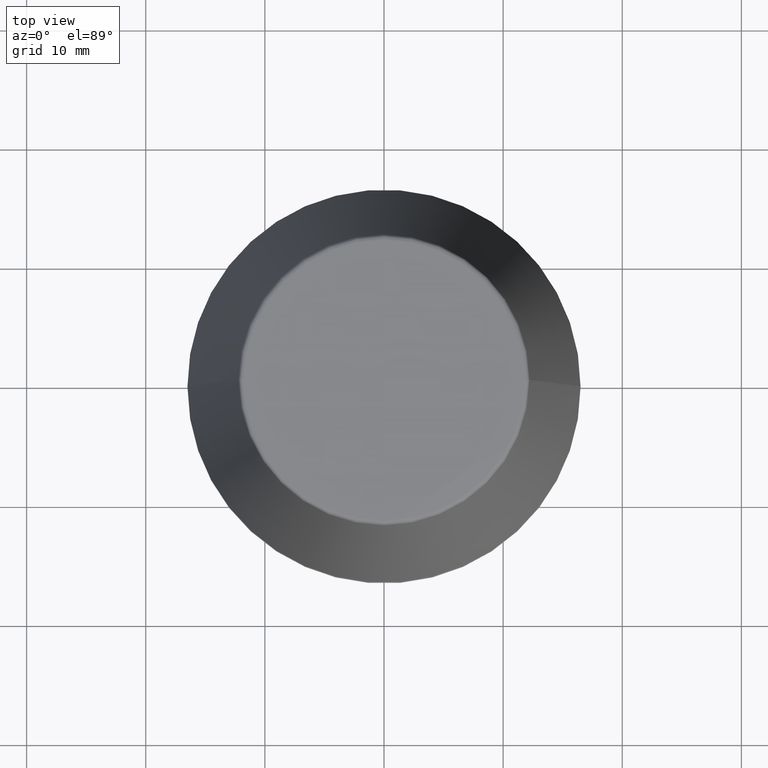
[diagram: clean part render]
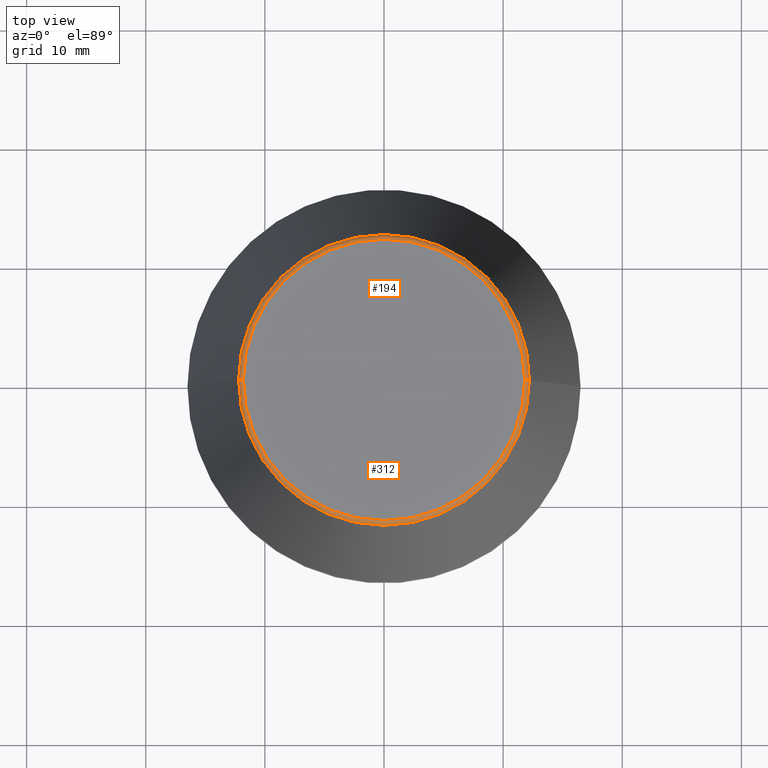
[diagram: same view with one multi-face feature highlighted, each face labeled with its STEP entity id]
A machine part, top view. The highlighted faces form ONE feature: a constant-radius fillet chain: 2 tangent blend faces with common blend radius 0.4 mm. The faces share edges in the B-rep.
Their STEP definitions:
[1] entity #194 (Torus):
#16 = DIRECTION ( 'NONE',  ( 1.000000000000000000, 0.0000000000000000000, 0.0000000000000000000 ) ) ;
#17 = AXIS2_PLACEMENT_3D ( 'NONE', #177, #317, #238 ) ;
#33 = DIRECTION ( 'NONE',  ( 1.000000000000000000, 0.0000000000000000000, 0.0000000000000000000 ) ) ;
#42 = DIRECTION ( 'NONE',  ( 1.000000000000000000, 0.0000000000000000000, 0.0000000000000000000 ) ) ;
#43 = TOROIDAL_SURFACE ( 'NONE', #382, 11.80989888411031400, 0.4000000000000026900 ) ;
#49 = AXIS2_PLACEMENT_3D ( 'NONE', #287, #141, #16 ) ;
#66 = CARTESIAN_POINT ( 'NONE',  ( -11.80989888411031400, 1.446295486667959300E-015, 39.60000000000000100 ) ) ;
#71 = CARTESIAN_POINT ( 'NONE',  ( 0.0000000000000000000, 0.0000000000000000000, 40.00000000000000700 ) ) ;
#79 = CIRCLE ( 'NONE', #17, 0.4000000000000045200 ) ;
#85 = DIRECTION ( 'NONE',  ( -0.0000000000000000000, -0.0000000000000000000, 1.000000000000000000 ) ) ;
#86 = VERTEX_POINT ( 'NONE', #89 ) ;
#89 = CARTESIAN_POINT ( 'NONE',  ( 11.80989888411031400, 0.0000000000000000000, 40.00000000000000700 ) ) ;
#120 = AXIS2_PLACEMENT_3D ( 'NONE', #71, #299, #42 ) ;
#135 = ORIENTED_EDGE ( 'NONE', *, *, #313, .F. ) ;
#141 = DIRECTION ( 'NONE',  ( -0.0000000000000000000, -0.0000000000000000000, 1.000000000000000000 ) ) ;
#145 = AXIS2_PLACEMENT_3D ( 'NONE', #66, #216, #248 ) ;
#153 = EDGE_LOOP ( 'NONE', ( #171, #199, #173, #135 ) ) ;
#160 = CARTESIAN_POINT ( 'NONE',  ( 0.0000000000000000000, 0.0000000000000000000, 39.60000000000000100 ) ) ;
#163 = CIRCLE ( 'NONE', #145, 0.4000000000000028000 ) ;
#171 = ORIENTED_EDGE ( 'NONE', *, *, #341, .T. ) ;
#173 = ORIENTED_EDGE ( 'NONE', *, *, #363, .F. ) ;
#177 = CARTESIAN_POINT ( 'NONE',  ( 11.80989888411031400, 0.0000000000000000000, 39.60000000000000100 ) ) ;
#194 = ADVANCED_FACE ( 'NONE', ( #205 ), #43, .T. ) ;
#199 = ORIENTED_EDGE ( 'NONE', *, *, #375, .T. ) ;
#205 = FACE_OUTER_BOUND ( 'NONE', #153, .T. ) ;
#208 = CARTESIAN_POINT ( 'NONE',  ( -11.80989888411031400, 1.470550059081603400E-015, 40.00000000000000700 ) ) ;
#216 = DIRECTION ( 'NONE',  ( 1.224646799147353200E-016, 1.000000000000000000, 0.0000000000000000000 ) ) ;
#238 = DIRECTION ( 'NONE',  ( 0.0000000000000000000, 0.0000000000000000000, -1.000000000000000000 ) ) ;
#248 = DIRECTION ( 'NONE',  ( -1.000000000000000000, 1.224646799147352500E-016, 0.0000000000000000000 ) ) ;
#254 = CARTESIAN_POINT ( 'NONE',  ( -12.20600611160694300, 0.0000000000000000000, 39.65566924038402900 ) ) ;
#264 = CIRCLE ( 'NONE', #49, 12.20600611160694300 ) ;
#287 = CARTESIAN_POINT ( 'NONE',  ( 0.0000000000000000000, 0.0000000000000000000, 39.65566924038402900 ) ) ;
#289 = VERTEX_POINT ( 'NONE', #315 ) ;
#299 = DIRECTION ( 'NONE',  ( -0.0000000000000000000, -0.0000000000000000000, 1.000000000000000000 ) ) ;
#310 = CIRCLE ( 'NONE', #120, 11.80989888411031400 ) ;
#313 = EDGE_CURVE ( 'NONE', #289, #86, #79, .T. ) ;
#315 = CARTESIAN_POINT ( 'NONE',  ( 12.20600611160694300, 1.757755848304969800E-015, 39.65566924038402900 ) ) ;
#317 = DIRECTION ( 'NONE',  ( 0.0000000000000000000, -1.000000000000000000, 0.0000000000000000000 ) ) ;
#327 = VERTEX_POINT ( 'NONE', #208 ) ;
#341 = EDGE_CURVE ( 'NONE', #289, #373, #264, .T. ) ;
#363 = EDGE_CURVE ( 'NONE', #86, #327, #310, .T. ) ;
#373 = VERTEX_POINT ( 'NONE', #254 ) ;
#375 = EDGE_CURVE ( 'NONE', #373, #327, #163, .T. ) ;
#382 = AXIS2_PLACEMENT_3D ( 'NONE', #160, #85, #33 ) ;
[2] entity #312 (Torus):
#17 = AXIS2_PLACEMENT_3D ( 'NONE', #177, #317, #238 ) ;
#32 = AXIS2_PLACEMENT_3D ( 'NONE', #152, #172, #191 ) ;
#45 = EDGE_CURVE ( 'NONE', #327, #86, #81, .T. ) ;
#59 = AXIS2_PLACEMENT_3D ( 'NONE', #237, #222, #297 ) ;
#66 = CARTESIAN_POINT ( 'NONE',  ( -11.80989888411031400, 1.446295486667959300E-015, 39.60000000000000100 ) ) ;
#79 = CIRCLE ( 'NONE', #17, 0.4000000000000045200 ) ;
#81 = CIRCLE ( 'NONE', #32, 11.80989888411031400 ) ;
#86 = VERTEX_POINT ( 'NONE', #89 ) ;
#89 = CARTESIAN_POINT ( 'NONE',  ( 11.80989888411031400, 0.0000000000000000000, 40.00000000000000700 ) ) ;
#122 = ORIENTED_EDGE ( 'NONE', *, *, #45, .F. ) ;
#140 = CARTESIAN_POINT ( 'NONE',  ( 0.0000000000000000000, 0.0000000000000000000, 39.65566924038402900 ) ) ;
#142 = ORIENTED_EDGE ( 'NONE', *, *, #155, .T. ) ;
#143 = ORIENTED_EDGE ( 'NONE', *, *, #375, .F. ) ;
#145 = AXIS2_PLACEMENT_3D ( 'NONE', #66, #216, #248 ) ;
#152 = CARTESIAN_POINT ( 'NONE',  ( 0.0000000000000000000, 0.0000000000000000000, 40.00000000000000700 ) ) ;
#155 = EDGE_CURVE ( 'NONE', #373, #289, #266, .T. ) ;
#163 = CIRCLE ( 'NONE', #145, 0.4000000000000028000 ) ;
#169 = AXIS2_PLACEMENT_3D ( 'NONE', #140, #348, #335 ) ;
#172 = DIRECTION ( 'NONE',  ( -0.0000000000000000000, -0.0000000000000000000, 1.000000000000000000 ) ) ;
#177 = CARTESIAN_POINT ( 'NONE',  ( 11.80989888411031400, 0.0000000000000000000, 39.60000000000000100 ) ) ;
#191 = DIRECTION ( 'NONE',  ( 1.000000000000000000, 0.0000000000000000000, 0.0000000000000000000 ) ) ;
#208 = CARTESIAN_POINT ( 'NONE',  ( -11.80989888411031400, 1.470550059081603400E-015, 40.00000000000000700 ) ) ;
#216 = DIRECTION ( 'NONE',  ( 1.224646799147353200E-016, 1.000000000000000000, 0.0000000000000000000 ) ) ;
#222 = DIRECTION ( 'NONE',  ( -0.0000000000000000000, -0.0000000000000000000, 1.000000000000000000 ) ) ;
#237 = CARTESIAN_POINT ( 'NONE',  ( 0.0000000000000000000, 0.0000000000000000000, 39.60000000000000100 ) ) ;
#238 = DIRECTION ( 'NONE',  ( 0.0000000000000000000, 0.0000000000000000000, -1.000000000000000000 ) ) ;
#248 = DIRECTION ( 'NONE',  ( -1.000000000000000000, 1.224646799147352500E-016, 0.0000000000000000000 ) ) ;
#254 = CARTESIAN_POINT ( 'NONE',  ( -12.20600611160694300, 0.0000000000000000000, 39.65566924038402900 ) ) ;
#266 = CIRCLE ( 'NONE', #169, 12.20600611160694300 ) ;
#283 = FACE_OUTER_BOUND ( 'NONE', #362, .T. ) ;
#289 = VERTEX_POINT ( 'NONE', #315 ) ;
#297 = DIRECTION ( 'NONE',  ( 1.000000000000000000, 0.0000000000000000000, 0.0000000000000000000 ) ) ;
#301 = ORIENTED_EDGE ( 'NONE', *, *, #313, .T. ) ;
#312 = ADVANCED_FACE ( 'NONE', ( #283 ), #357, .T. ) ;
#313 = EDGE_CURVE ( 'NONE', #289, #86, #79, .T. ) ;
#315 = CARTESIAN_POINT ( 'NONE',  ( 12.20600611160694300, 1.757755848304969800E-015, 39.65566924038402900 ) ) ;
#317 = DIRECTION ( 'NONE',  ( 0.0000000000000000000, -1.000000000000000000, 0.0000000000000000000 ) ) ;
#327 = VERTEX_POINT ( 'NONE', #208 ) ;
#335 = DIRECTION ( 'NONE',  ( 1.000000000000000000, 0.0000000000000000000, 0.0000000000000000000 ) ) ;
#348 = DIRECTION ( 'NONE',  ( -0.0000000000000000000, -0.0000000000000000000, 1.000000000000000000 ) ) ;
#357 = TOROIDAL_SURFACE ( 'NONE', #59, 11.80989888411031400, 0.4000000000000026900 ) ;
#362 = EDGE_LOOP ( 'NONE', ( #143, #142, #301, #122 ) ) ;
#373 = VERTEX_POINT ( 'NONE', #254 ) ;
#375 = EDGE_CURVE ( 'NONE', #373, #327, #163, .T. ) ;